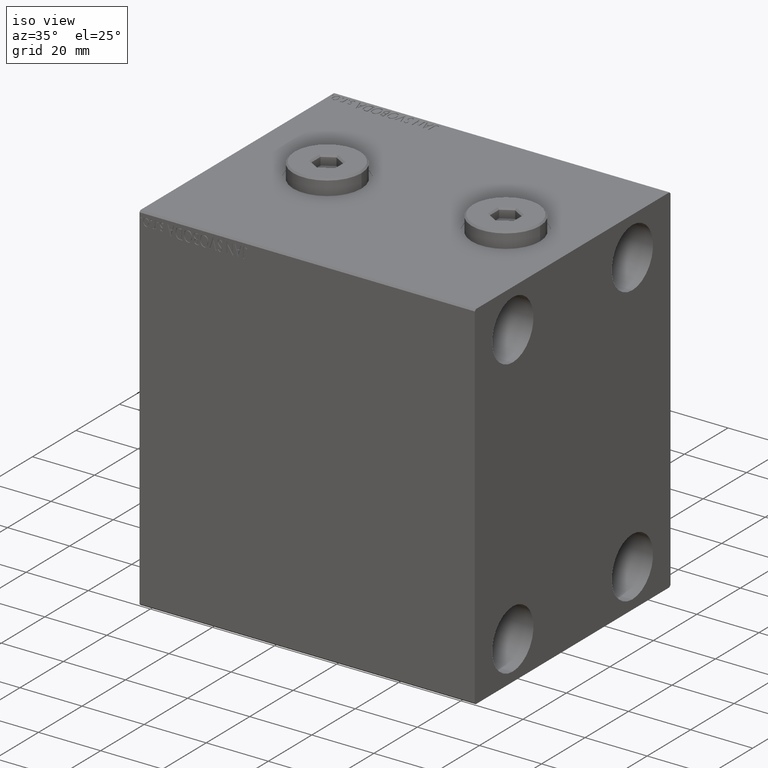
[diagram: clean part render]
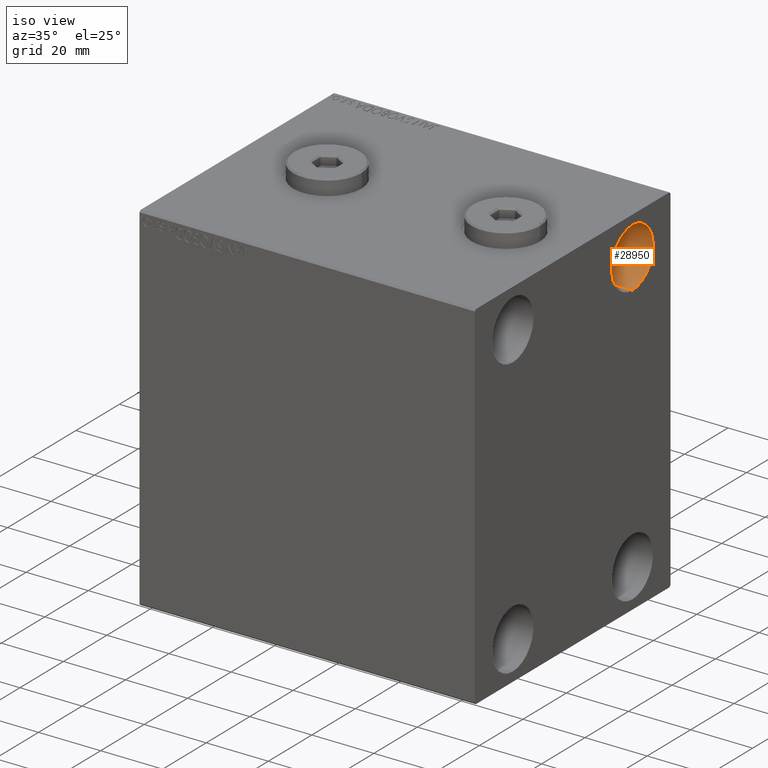
[diagram: same view with one face highlighted and labeled with its STEP entity id]
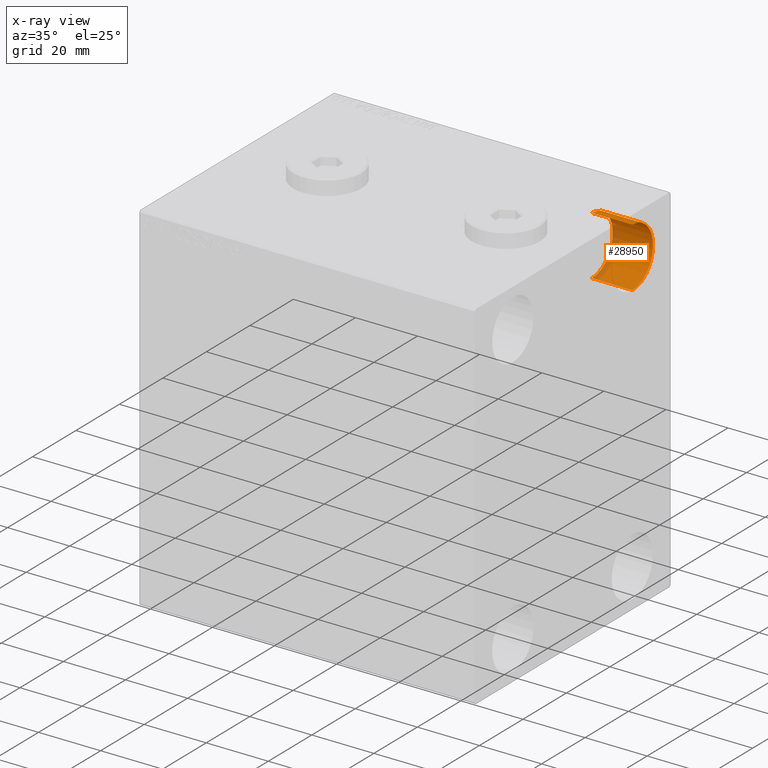
[diagram: x-ray of the same camera — body ghosted, the highlighted face saturated]
A machine part, iso view. The second image highlights one B-rep face of the part: STEP entity #28950.
The next image is the same camera in x-ray: the body ghosted, the highlighted face saturated — about 12% of this face is hidden behind the body in this view.
In plain terms, the highlighted cylindrical surface (edge-blend (fillet) strip) has radius 9.5 mm, axis along (1, 0, 0).
Its self-contained STEP definition (entity closure, byte-faithful):
#1443 = VERTEX_POINT ( 'NONE', #6626 ) ;
#2236 = CYLINDRICAL_SURFACE ( 'NONE', #27070, 9.500000000000001776 ) ;
#3066 = AXIS2_PLACEMENT_3D ( 'NONE', #34209, #19988, #26636 ) ;
#3127 = EDGE_CURVE ( 'NONE', #17969, #35968, #27908, .T. ) ;
#4351 = VECTOR ( 'NONE', #28291, 1000.000000000000000 ) ;
#5250 = CARTESIAN_POINT ( 'NONE',  ( 108.0000000000000000, 27.50000000000001066, 54.50000000000000711 ) ) ;
#5449 = CARTESIAN_POINT ( 'NONE',  ( 95.00000000000000000, 27.50000000000001066, 35.50000000000000711 ) ) ;
#6142 = CARTESIAN_POINT ( 'NONE',  ( 95.00000000000000000, 27.50000000000001066, 45.00000000000000711 ) ) ;
#6281 = DIRECTION ( 'NONE',  ( 0.000000000000000000, 0.000000000000000000, 1.000000000000000000 ) ) ;
#6626 = CARTESIAN_POINT ( 'NONE',  ( 108.0000000000000000, 27.50000000000001066, 35.50000000000000711 ) ) ;
#9576 = DIRECTION ( 'NONE',  ( 1.000000000000000000, -0.000000000000000000, -0.000000000000000000 ) ) ;
#9845 = CARTESIAN_POINT ( 'NONE',  ( 95.00000000000000000, 27.50000000000001066, 54.50000000000000711 ) ) ;
#10147 = VERTEX_POINT ( 'NONE', #5250 ) ;
#11828 = CIRCLE ( 'NONE', #25711, 9.500000000000001776 ) ;
#17969 = VERTEX_POINT ( 'NONE', #9845 ) ;
#19644 = DIRECTION ( 'NONE',  ( 0.000000000000000000, 0.000000000000000000, -1.000000000000000000 ) ) ;
#19988 = DIRECTION ( 'NONE',  ( -1.000000000000000000, -0.000000000000000000, -0.000000000000000000 ) ) ;
#20123 = ORIENTED_EDGE ( 'NONE', *, *, #27162, .F. ) ;
#21086 = ORIENTED_EDGE ( 'NONE', *, *, #3127, .T. ) ;
#25711 = AXIS2_PLACEMENT_3D ( 'NONE', #37688, #30776, #6281 ) ;
#25734 = CARTESIAN_POINT ( 'NONE',  ( 95.00000000000000000, 27.50000000000001066, 54.50000000000000711 ) ) ;
#26636 = DIRECTION ( 'NONE',  ( 0.000000000000000000, 0.000000000000000000, 1.000000000000000000 ) ) ;
#27070 = AXIS2_PLACEMENT_3D ( 'NONE', #6142, #9576, #19644 ) ;
#27162 = EDGE_CURVE ( 'NONE', #17969, #10147, #28511, .T. ) ;
#27200 = FACE_OUTER_BOUND ( 'NONE', #42597, .T. ) ;
#27908 = CIRCLE ( 'NONE', #3066, 9.500000000000001776 ) ;
#28291 = DIRECTION ( 'NONE',  ( 1.000000000000000000, -0.000000000000000000, -0.000000000000000000 ) ) ;
#28511 = LINE ( 'NONE', #25734, #4351 ) ;
#28950 = ADVANCED_FACE ( 'NONE', ( #27200 ), #2236, .F. ) ;
#29981 = ORIENTED_EDGE ( 'NONE', *, *, #34171, .F. ) ;
#30400 = LINE ( 'NONE', #5449, #41092 ) ;
#30776 = DIRECTION ( 'NONE',  ( -1.000000000000000000, -0.000000000000000000, -0.000000000000000000 ) ) ;
#32225 = EDGE_CURVE ( 'NONE', #35968, #1443, #30400, .T. ) ;
#34171 = EDGE_CURVE ( 'NONE', #10147, #1443, #11828, .T. ) ;
#34209 = CARTESIAN_POINT ( 'NONE',  ( 95.00000000000000000, 27.50000000000001066, 45.00000000000000711 ) ) ;
#35968 = VERTEX_POINT ( 'NONE', #44010 ) ;
#37494 = ORIENTED_EDGE ( 'NONE', *, *, #32225, .T. ) ;
#37688 = CARTESIAN_POINT ( 'NONE',  ( 108.0000000000000000, 27.50000000000001066, 45.00000000000000711 ) ) ;
#41092 = VECTOR ( 'NONE', #44620, 1000.000000000000000 ) ;
#42597 = EDGE_LOOP ( 'NONE', ( #20123, #21086, #37494, #29981 ) ) ;
#44010 = CARTESIAN_POINT ( 'NONE',  ( 95.00000000000000000, 27.50000000000001066, 35.50000000000000711 ) ) ;
#44620 = DIRECTION ( 'NONE',  ( 1.000000000000000000, -0.000000000000000000, -0.000000000000000000 ) ) ;